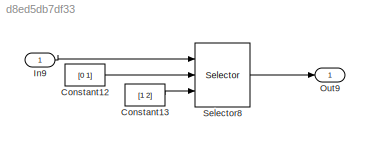
MODEL slx_d8ed5db7df33
KIND model
CONFIG AbsTol = auto
CONFIG EnableMultiTasking = on
CONFIG FixedStep = 0.1
CONFIG MaxStep = 1
CONFIG MinStep = auto
CONFIG RelTol = 1e-3
CONFIG SampleTimeConstraint = Unconstrained
CONFIG Solver = FixedStepAuto
CONFIG SolverName = FixedStepAuto
CONFIG StartTime = 0.0
CONFIG StopTime = 0
BLOCK [Constant] Constant12
  Value = [0 1]
BLOCK [Constant] Constant13
  Value = [1 2]
BLOCK [Inport] In9
  IconDisplay = Port number
  PortDimensions = [2 3]
BLOCK [Outport] Out9
  IconDisplay = Port number
BLOCK [Selector] Selector8
  IndexMode = Zero-based
  IndexOptions = Index vector (port),Index vector (port)
  Indices = 0,1
  InputPortWidth = 3
  NumberOfDimensions = 2
  OutputSizes = 1,2
  Ports = [3, 1]
LINE Constant12:1 -> Selector8:2
LINE Constant13:1 -> Selector8:3
LINE In9:1 -> Selector8:1
LINE Selector8:1 -> Out9:1
